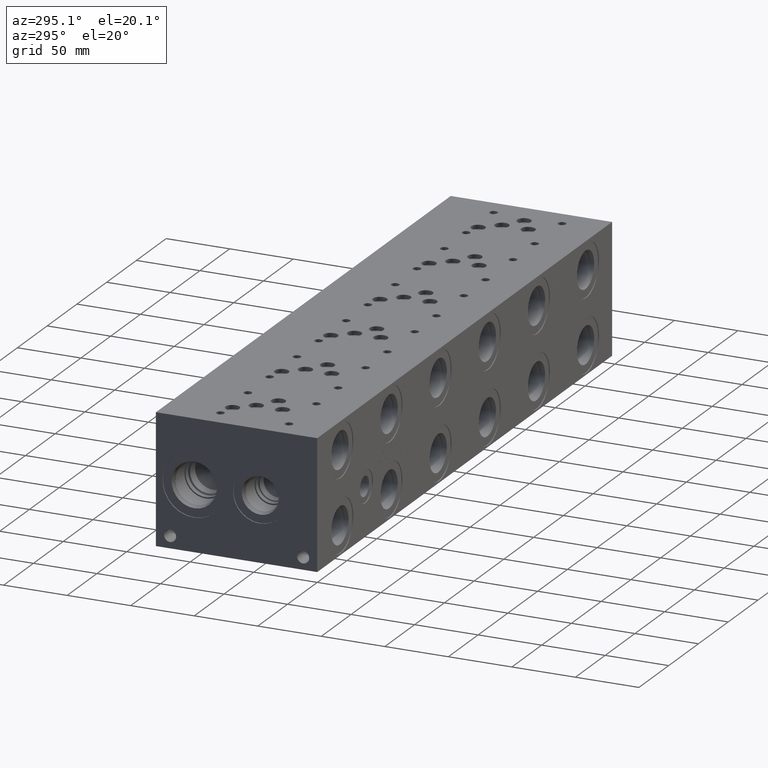
[diagram: clean part render]
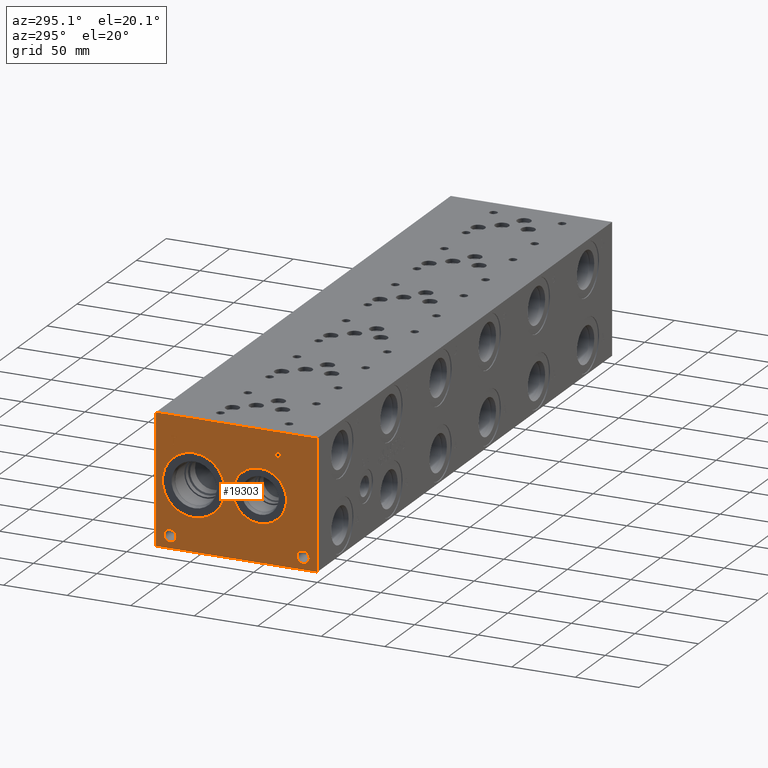
[diagram: same view with one face highlighted and labeled with its STEP entity id]
A machine part, auxiliary view. The second image highlights one B-rep face of the part: STEP entity #19303.
In plain terms, the highlighted planar face has unit normal (-1, 0, 0).
Its self-contained STEP definition (entity closure, byte-faithful):
#592=CIRCLE('',#20334,24.5618);
#593=CIRCLE('',#20335,24.5618);
#594=CIRCLE('',#20336,21.0185);
#595=CIRCLE('',#20337,21.0185);
#596=CIRCLE('',#20338,4.7625);
#597=CIRCLE('',#20339,4.7625);
#598=CIRCLE('',#20340,4.7625);
#599=CIRCLE('',#20341,4.7625);
#1462=B_SPLINE_CURVE_WITH_KNOTS('',2,(#29281,#29282,#29283,#29284),
 .UNSPECIFIED.,.F.,.F.,(3,1,3),(0.,1.,2.),.UNSPECIFIED.);
#1464=B_SPLINE_CURVE_WITH_KNOTS('',2,(#29302,#29303,#29304,#29305),
 .UNSPECIFIED.,.F.,.F.,(3,1,3),(0.,1.,2.),.UNSPECIFIED.);
#1466=B_SPLINE_CURVE_WITH_KNOTS('',2,(#29351,#29352,#29353,#29354),
 .UNSPECIFIED.,.F.,.F.,(3,1,3),(0.,1.,2.),.UNSPECIFIED.);
#1468=B_SPLINE_CURVE_WITH_KNOTS('',2,(#29369,#29370,#29371,#29372),
 .UNSPECIFIED.,.F.,.F.,(3,1,3),(0.,1.,2.),.UNSPECIFIED.);
#1762=FACE_BOUND('',#3223,.T.);
#1763=FACE_BOUND('',#3224,.T.);
#1764=FACE_BOUND('',#3225,.T.);
#1765=FACE_BOUND('',#3226,.T.);
#1766=FACE_BOUND('',#3227,.T.);
#1767=FACE_BOUND('',#3228,.T.);
#2100=FACE_OUTER_BOUND('',#3222,.T.);
#3222=EDGE_LOOP('',(#13750,#13751,#13752,#13753));
#3223=EDGE_LOOP('',(#13754,#13755));
#3224=EDGE_LOOP('',(#13756,#13757));
#3225=EDGE_LOOP('',(#13758,#13759));
#3226=EDGE_LOOP('',(#13760,#13761));
#3227=EDGE_LOOP('',(#13762,#13763,#13764,#13765,#13766,#13767,#13768,#13769));
#3228=EDGE_LOOP('',(#13770,#13771,#13772,#13773,#13774,#13775,#13776,#13777,
#13778));
#4242=LINE('',#26282,#5914);
#4813=LINE('',#29314,#6485);
#4816=LINE('',#29320,#6488);
#4819=LINE('',#29326,#6491);
#4822=LINE('',#29332,#6494);
#4825=LINE('',#29338,#6497);
#4829=LINE('',#29380,#6501);
#4830=LINE('',#29382,#6502);
#4831=LINE('',#29383,#6503);
#4832=LINE('',#29402,#6504);
#4833=LINE('',#29404,#6505);
#4834=LINE('',#29406,#6506);
#4835=LINE('',#29408,#6507);
#4836=LINE('',#29410,#6508);
#4837=LINE('',#29412,#6509);
#4838=LINE('',#29414,#6510);
#4839=LINE('',#29415,#6511);
#5914=VECTOR('',#21686,10.);
#6485=VECTOR('',#22553,10.);
#6488=VECTOR('',#22558,10.);
#6491=VECTOR('',#22563,10.);
#6494=VECTOR('',#22568,10.);
#6497=VECTOR('',#22573,10.);
#6501=VECTOR('',#22581,10.);
#6502=VECTOR('',#22582,10.);
#6503=VECTOR('',#22583,10.);
#6504=VECTOR('',#22600,10.);
#6505=VECTOR('',#22601,10.);
#6506=VECTOR('',#22602,10.);
#6507=VECTOR('',#22603,10.);
#6508=VECTOR('',#22604,10.);
#6509=VECTOR('',#22605,10.);
#6510=VECTOR('',#22606,10.);
#6511=VECTOR('',#22607,10.);
#7572=VERTEX_POINT('',#26275);
#7575=VERTEX_POINT('',#26280);
#8274=VERTEX_POINT('',#29279);
#8275=VERTEX_POINT('',#29280);
#8278=VERTEX_POINT('',#29301);
#8280=VERTEX_POINT('',#29313);
#8282=VERTEX_POINT('',#29319);
#8284=VERTEX_POINT('',#29325);
#8286=VERTEX_POINT('',#29331);
#8288=VERTEX_POINT('',#29337);
#8290=VERTEX_POINT('',#29350);
#8292=VERTEX_POINT('',#29379);
#8293=VERTEX_POINT('',#29381);
#8294=VERTEX_POINT('',#29384);
#8295=VERTEX_POINT('',#29385);
#8296=VERTEX_POINT('',#29388);
#8297=VERTEX_POINT('',#29389);
#8298=VERTEX_POINT('',#29392);
#8299=VERTEX_POINT('',#29393);
#8300=VERTEX_POINT('',#29396);
#8301=VERTEX_POINT('',#29397);
#8302=VERTEX_POINT('',#29400);
#8303=VERTEX_POINT('',#29401);
#8304=VERTEX_POINT('',#29403);
#8305=VERTEX_POINT('',#29405);
#8306=VERTEX_POINT('',#29407);
#8307=VERTEX_POINT('',#29409);
#8308=VERTEX_POINT('',#29411);
#8309=VERTEX_POINT('',#29413);
#9544=EDGE_CURVE('',#7572,#7575,#4242,.T.);
#10404=EDGE_CURVE('',#8274,#8275,#1462,.T.);
#10408=EDGE_CURVE('',#8278,#8274,#1464,.T.);
#10411=EDGE_CURVE('',#8280,#8278,#4813,.T.);
#10414=EDGE_CURVE('',#8282,#8280,#4816,.T.);
#10417=EDGE_CURVE('',#8284,#8282,#4819,.T.);
#10420=EDGE_CURVE('',#8286,#8284,#4822,.T.);
#10423=EDGE_CURVE('',#8288,#8286,#4825,.T.);
#10426=EDGE_CURVE('',#8290,#8288,#1466,.T.);
#10429=EDGE_CURVE('',#8275,#8290,#1468,.T.);
#10431=EDGE_CURVE('',#8292,#7572,#4829,.T.);
#10432=EDGE_CURVE('',#8293,#7575,#4830,.T.);
#10433=EDGE_CURVE('',#8292,#8293,#4831,.T.);
#10434=EDGE_CURVE('',#8294,#8295,#592,.T.);
#10435=EDGE_CURVE('',#8295,#8294,#593,.T.);
#10436=EDGE_CURVE('',#8296,#8297,#594,.T.);
#10437=EDGE_CURVE('',#8297,#8296,#595,.T.);
#10438=EDGE_CURVE('',#8298,#8299,#596,.T.);
#10439=EDGE_CURVE('',#8299,#8298,#597,.T.);
#10440=EDGE_CURVE('',#8300,#8301,#598,.T.);
#10441=EDGE_CURVE('',#8301,#8300,#599,.T.);
#10442=EDGE_CURVE('',#8302,#8303,#4832,.T.);
#10443=EDGE_CURVE('',#8303,#8304,#4833,.T.);
#10444=EDGE_CURVE('',#8304,#8305,#4834,.T.);
#10445=EDGE_CURVE('',#8305,#8306,#4835,.T.);
#10446=EDGE_CURVE('',#8306,#8307,#4836,.T.);
#10447=EDGE_CURVE('',#8307,#8308,#4837,.T.);
#10448=EDGE_CURVE('',#8308,#8309,#4838,.T.);
#10449=EDGE_CURVE('',#8309,#8302,#4839,.T.);
#13750=ORIENTED_EDGE('',*,*,#10431,.T.);
#13751=ORIENTED_EDGE('',*,*,#9544,.T.);
#13752=ORIENTED_EDGE('',*,*,#10432,.F.);
#13753=ORIENTED_EDGE('',*,*,#10433,.F.);
#13754=ORIENTED_EDGE('',*,*,#10434,.T.);
#13755=ORIENTED_EDGE('',*,*,#10435,.T.);
#13756=ORIENTED_EDGE('',*,*,#10436,.T.);
#13757=ORIENTED_EDGE('',*,*,#10437,.T.);
#13758=ORIENTED_EDGE('',*,*,#10438,.T.);
#13759=ORIENTED_EDGE('',*,*,#10439,.T.);
#13760=ORIENTED_EDGE('',*,*,#10440,.T.);
#13761=ORIENTED_EDGE('',*,*,#10441,.T.);
#13762=ORIENTED_EDGE('',*,*,#10442,.T.);
#13763=ORIENTED_EDGE('',*,*,#10443,.T.);
#13764=ORIENTED_EDGE('',*,*,#10444,.T.);
#13765=ORIENTED_EDGE('',*,*,#10445,.T.);
#13766=ORIENTED_EDGE('',*,*,#10446,.T.);
#13767=ORIENTED_EDGE('',*,*,#10447,.T.);
#13768=ORIENTED_EDGE('',*,*,#10448,.T.);
#13769=ORIENTED_EDGE('',*,*,#10449,.T.);
#13770=ORIENTED_EDGE('',*,*,#10404,.T.);
#13771=ORIENTED_EDGE('',*,*,#10429,.T.);
#13772=ORIENTED_EDGE('',*,*,#10426,.T.);
#13773=ORIENTED_EDGE('',*,*,#10423,.T.);
#13774=ORIENTED_EDGE('',*,*,#10420,.T.);
#13775=ORIENTED_EDGE('',*,*,#10417,.T.);
#13776=ORIENTED_EDGE('',*,*,#10414,.T.);
#13777=ORIENTED_EDGE('',*,*,#10411,.T.);
#13778=ORIENTED_EDGE('',*,*,#10408,.T.);
#18064=PLANE('',#20333);
#19303=ADVANCED_FACE('',(#2100,#1762,#1763,#1764,#1765,#1766,#1767),#18064,
 .T.);
#20333=AXIS2_PLACEMENT_3D('',#29378,#22579,#22580);
#20334=AXIS2_PLACEMENT_3D('',#29386,#22584,#22585);
#20335=AXIS2_PLACEMENT_3D('',#29387,#22586,#22587);
#20336=AXIS2_PLACEMENT_3D('',#29390,#22588,#22589);
#20337=AXIS2_PLACEMENT_3D('',#29391,#22590,#22591);
#20338=AXIS2_PLACEMENT_3D('',#29394,#22592,#22593);
#20339=AXIS2_PLACEMENT_3D('',#29395,#22594,#22595);
#20340=AXIS2_PLACEMENT_3D('',#29398,#22596,#22597);
#20341=AXIS2_PLACEMENT_3D('',#29399,#22598,#22599);
#21686=DIRECTION('',(0.,0.,1.));
#22553=DIRECTION('',(0.,-1.,0.));
#22558=DIRECTION('',(0.,-3.49676548440641E-15,1.));
#22563=DIRECTION('',(0.,1.,0.));
#22568=DIRECTION('',(0.,3.75218139805001E-15,-1.));
#22573=DIRECTION('',(0.,1.,0.));
#22579=DIRECTION('center_axis',(-1.,0.,0.));
#22580=DIRECTION('ref_axis',(0.,-1.,0.));
#22581=DIRECTION('',(0.,-1.,0.));
#22582=DIRECTION('',(0.,-1.,0.));
#22583=DIRECTION('',(0.,0.,1.));
#22584=DIRECTION('center_axis',(1.,0.,0.));
#22585=DIRECTION('ref_axis',(0.,0.,1.));
#22586=DIRECTION('center_axis',(1.,0.,0.));
#22587=DIRECTION('ref_axis',(0.,0.,1.));
#22588=DIRECTION('center_axis',(1.,0.,0.));
#22589=DIRECTION('ref_axis',(0.,0.,1.));
#22590=DIRECTION('center_axis',(1.,0.,0.));
#22591=DIRECTION('ref_axis',(0.,0.,1.));
#22592=DIRECTION('center_axis',(1.,0.,0.));
#22593=DIRECTION('ref_axis',(0.,1.,0.));
#22594=DIRECTION('center_axis',(1.,0.,0.));
#22595=DIRECTION('ref_axis',(0.,1.,0.));
#22596=DIRECTION('center_axis',(1.,0.,0.));
#22597=DIRECTION('ref_axis',(0.,1.,0.));
#22598=DIRECTION('center_axis',(1.,0.,0.));
#22599=DIRECTION('ref_axis',(0.,1.,0.));
#22600=DIRECTION('',(0.,1.,0.));
#22601=DIRECTION('',(0.,-3.17280044688051E-15,1.));
#22602=DIRECTION('',(0.,1.,0.));
#22603=DIRECTION('',(0.,0.,1.));
#22604=DIRECTION('',(0.,-1.,-3.47984565141734E-15));
#22605=DIRECTION('',(0.,0.,-1.));
#22606=DIRECTION('',(0.,1.,8.33818088455555E-15));
#22607=DIRECTION('',(0.,3.17280044688051E-15,-1.));
#26275=CARTESIAN_POINT('',(0.,0.,0.));
#26280=CARTESIAN_POINT('',(0.,0.,101.6));
#26282=CARTESIAN_POINT('',(0.,0.,0.));
#29279=CARTESIAN_POINT('',(0.,29.4496327976406,85.4557681439707));
#29280=CARTESIAN_POINT('',(0.,28.693190345468,83.9377373726039));
#29281=CARTESIAN_POINT('Ctrl Pts',(0.,29.4496327976406,85.4557681439707));
#29282=CARTESIAN_POINT('Ctrl Pts',(0.,29.0945679731514,85.2139123939563));
#29283=CARTESIAN_POINT('Ctrl Pts',(0.,28.693190345468,84.4677616758269));
#29284=CARTESIAN_POINT('Ctrl Pts',(0.,28.693190345468,83.9377373726039));
#29301=CARTESIAN_POINT('',(0.,31.1117478456117,85.8519999046326));
#29302=CARTESIAN_POINT('Ctrl Pts',(0.,31.1117478456117,85.8519999046326));
#29303=CARTESIAN_POINT('Ctrl Pts',(0.,30.5457024732376,85.8519999046326));
#29304=CARTESIAN_POINT('Ctrl Pts',(0.,29.7532389519139,85.6667486918556));
#29305=CARTESIAN_POINT('Ctrl Pts',(0.,29.4496327976406,85.4557681439707));
#29313=CARTESIAN_POINT('',(0.,32.7069666223022,85.8519999046326));
#29314=CARTESIAN_POINT('',(0.,79.8534833111511,85.8519999046326));
#29319=CARTESIAN_POINT('',(0.,32.7069666223022,79.502));
#29320=CARTESIAN_POINT('',(0.,32.7069666223024,39.7509999999998));
#29325=CARTESIAN_POINT('',(0.,31.8630444307627,79.502));
#29326=CARTESIAN_POINT('',(0.,79.4315222153814,79.502));
#29331=CARTESIAN_POINT('',(0.,31.8630444307627,81.8690988299279));
#29332=CARTESIAN_POINT('',(0.,31.8630444307629,40.9345494149638));
#29337=CARTESIAN_POINT('',(0.,31.1477689147628,81.8690988299279));
#29338=CARTESIAN_POINT('',(0.,79.0738844573814,81.8690988299279));
#29350=CARTESIAN_POINT('',(0.,29.2489439837989,82.5277698086904));
#29351=CARTESIAN_POINT('Ctrl Pts',(0.,29.2489439837989,82.5277698086904));
#29352=CARTESIAN_POINT('Ctrl Pts',(0.,29.5782794731802,82.2035801863307));
#29353=CARTESIAN_POINT('Ctrl Pts',(0.,30.4685144679139,81.8690988299279));
#29354=CARTESIAN_POINT('Ctrl Pts',(0.,31.1477689147628,81.8690988299279));
#29369=CARTESIAN_POINT('Ctrl Pts',(0.,28.693190345468,83.9377373726039));
#29370=CARTESIAN_POINT('Ctrl Pts',(0.,28.693190345468,83.5260680108774));
#29371=CARTESIAN_POINT('Ctrl Pts',(0.,28.9865047656982,82.7850631597695));
#29372=CARTESIAN_POINT('Ctrl Pts',(0.,29.2489439837989,82.5277698086904));
#29378=CARTESIAN_POINT('Origin',(0.,127.,0.));
#29379=CARTESIAN_POINT('',(0.,127.,0.));
#29380=CARTESIAN_POINT('',(0.,127.,0.));
#29381=CARTESIAN_POINT('',(0.,127.,101.6));
#29382=CARTESIAN_POINT('',(0.,127.,101.6));
#29383=CARTESIAN_POINT('',(0.,127.,0.));
#29384=CARTESIAN_POINT('',(0.,97.2566,75.3618));
#29385=CARTESIAN_POINT('',(6.93889390390723E-17,97.2566,26.2382));
#29386=CARTESIAN_POINT('Origin',(0.,97.2566,50.8));
#29387=CARTESIAN_POINT('Origin',(0.,97.2566,50.8));
#29388=CARTESIAN_POINT('',(0.,45.2882,71.8185));
#29389=CARTESIAN_POINT('',(0.,45.2882,29.7815));
#29390=CARTESIAN_POINT('Origin',(0.,45.2882,50.8));
#29391=CARTESIAN_POINT('Origin',(0.,45.2882,50.8));
#29392=CARTESIAN_POINT('',(0.,15.8877,9.52500000000001));
#29393=CARTESIAN_POINT('',(0.,6.3627,9.52500000000001));
#29394=CARTESIAN_POINT('Origin',(0.,11.1252,9.52500000000001));
#29395=CARTESIAN_POINT('Origin',(0.,11.1252,9.52500000000001));
#29396=CARTESIAN_POINT('',(0.,120.6373,9.52500000000001));
#29397=CARTESIAN_POINT('',(0.,111.1123,9.52500000000001));
#29398=CARTESIAN_POINT('Origin',(0.,115.8748,9.52500000000001));
#29399=CARTESIAN_POINT('Origin',(0.,115.8748,9.52500000000001));
#29400=CARTESIAN_POINT('',(0.,112.918334728547,79.375));
#29401=CARTESIAN_POINT('',(0.,113.762256920087,79.375));
#29402=CARTESIAN_POINT('',(0.,119.959167364273,79.375));
#29403=CARTESIAN_POINT('',(0.,113.762256920086,84.9737033194815));
#29404=CARTESIAN_POINT('',(0.,113.762256920087,39.6875));
#29405=CARTESIAN_POINT('',(0.,115.892645867022,84.9737033194815));
#29406=CARTESIAN_POINT('',(0.,120.381128460043,84.9737033194815));
#29407=CARTESIAN_POINT('',(0.,115.892645867022,85.7249999046326));
#29408=CARTESIAN_POINT('',(0.,115.892645867022,42.4868516597408));
#29409=CARTESIAN_POINT('',(0.,110.787945781612,85.7249999046326));
#29410=CARTESIAN_POINT('',(0.,121.446322933511,85.7249999046326));
#29411=CARTESIAN_POINT('',(0.,110.787945781612,84.9737033194815));
#29412=CARTESIAN_POINT('',(0.,110.787945781612,42.8624999523163));
#29413=CARTESIAN_POINT('',(0.,112.918334728547,84.9737033194815));
#29414=CARTESIAN_POINT('',(0.,118.893972890806,84.9737033194816));
#29415=CARTESIAN_POINT('',(0.,112.918334728547,42.4868516597407));